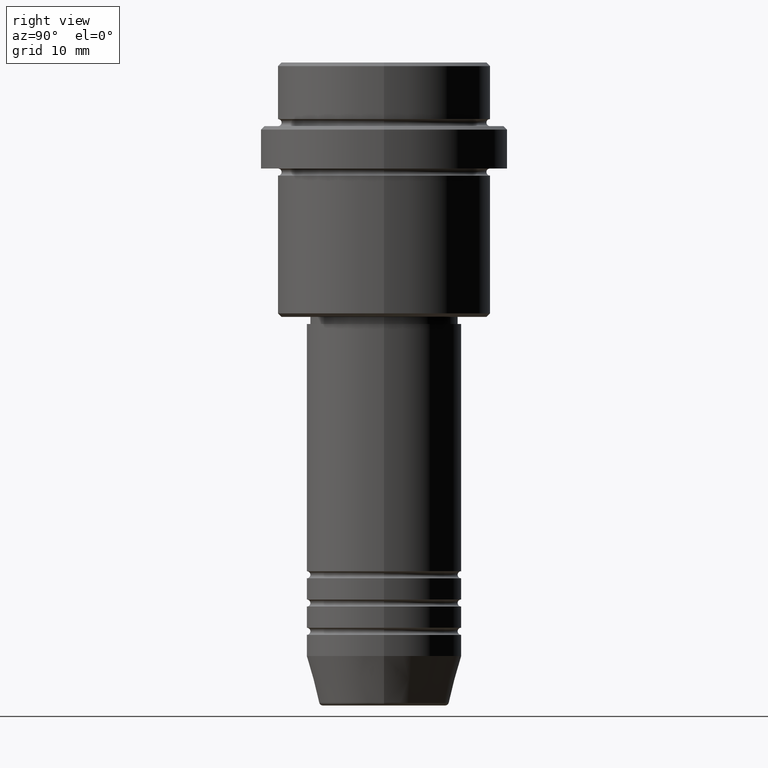
[diagram: clean part render]
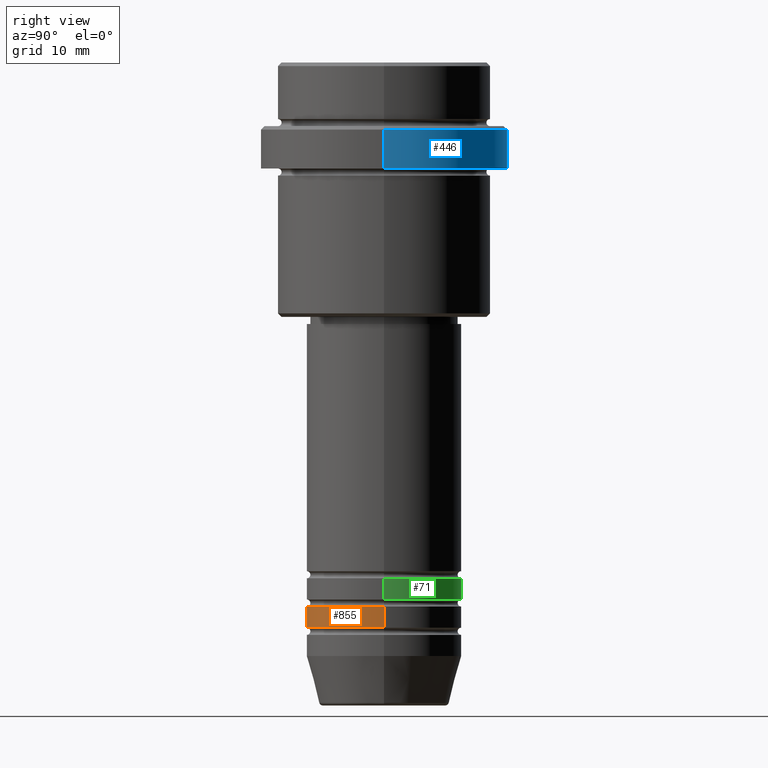
[diagram: same view with three faces highlighted in distinct colors, each labeled with its STEP entity id]
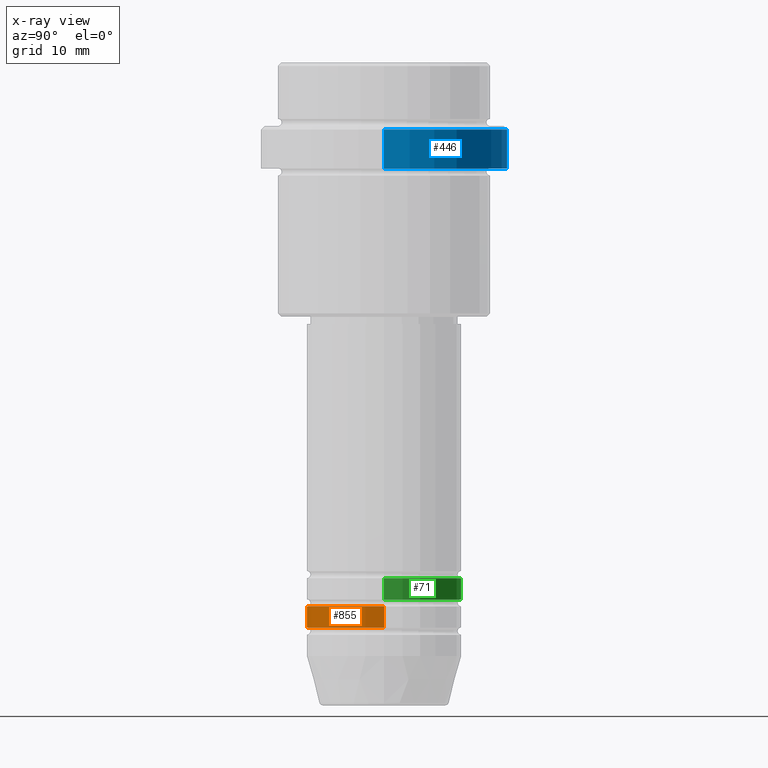
[diagram: x-ray of the same camera — body ghosted, the three highlighted faces saturated]
A machine part, right view with three faces highlighted in distinct colors.
The next image is the same camera in x-ray (body ghosted, the three faces saturated) — at least one of them is partly hidden behind the body in this view.
Their STEP definitions:

[orange] entity #855 — the highlighted cylindrical surface (partial cylindrical patch) has radius 11 mm, axis along (-0, -0, 1).
#1 = LINE ( 'NONE', #225, #716 ) ;
#13 = DIRECTION ( 'NONE',  ( 1.000000000000000000, 0.000000000000000000, 0.000000000000000000 ) ) ;
#108 = VERTEX_POINT ( 'NONE', #1408 ) ;
#112 = CARTESIAN_POINT ( 'NONE',  ( 0.000000000000000000, 0.000000000000000000, 0.000000000000000000 ) ) ;
#188 = ORIENTED_EDGE ( 'NONE', *, *, #345, .T. ) ;
#197 = CYLINDRICAL_SURFACE ( 'NONE', #272, 11.00000000000000000 ) ;
#217 = FACE_OUTER_BOUND ( 'NONE', #698, .T. ) ;
#220 = EDGE_CURVE ( 'NONE', #583, #108, #570, .T. ) ;
#223 = CARTESIAN_POINT ( 'NONE',  ( 0.000000000000000000, 0.000000000000000000, -76.99999999999987210 ) ) ;
#225 = CARTESIAN_POINT ( 'NONE',  ( 11.00000000000000000, 0.000000000000000000, 0.000000000000000000 ) ) ;
#272 = AXIS2_PLACEMENT_3D ( 'NONE', #112, #1193, #670 ) ;
#318 = CARTESIAN_POINT ( 'NONE',  ( -11.00000000000000000, 1.347111479062088405E-15, 0.000000000000000000 ) ) ;
#345 = EDGE_CURVE ( 'NONE', #108, #1111, #1, .T. ) ;
#404 = VECTOR ( 'NONE', #1202, 1000.000000000000000 ) ;
#437 = EDGE_CURVE ( 'NONE', #583, #696, #781, .T. ) ;
#468 = ORIENTED_EDGE ( 'NONE', *, *, #437, .F. ) ;
#525 = CARTESIAN_POINT ( 'NONE',  ( 0.000000000000000000, 0.000000000000000000, -79.99999999999985789 ) ) ;
#570 = CIRCLE ( 'NONE', #667, 11.00000000000000000 ) ;
#583 = VERTEX_POINT ( 'NONE', #712 ) ;
#667 = AXIS2_PLACEMENT_3D ( 'NONE', #525, #914, #1326 ) ;
#670 = DIRECTION ( 'NONE',  ( 1.000000000000000000, 0.000000000000000000, 0.000000000000000000 ) ) ;
#696 = VERTEX_POINT ( 'NONE', #1397 ) ;
#698 = EDGE_LOOP ( 'NONE', ( #468, #851, #188, #946 ) ) ;
#712 = CARTESIAN_POINT ( 'NONE',  ( -11.00000000000000000, 1.347111479062088405E-15, -79.99999999999985789 ) ) ;
#716 = VECTOR ( 'NONE', #1116, 1000.000000000000000 ) ;
#781 = LINE ( 'NONE', #318, #404 ) ;
#818 = AXIS2_PLACEMENT_3D ( 'NONE', #223, #1178, #13 ) ;
#843 = EDGE_CURVE ( 'NONE', #696, #1111, #1184, .T. ) ;
#851 = ORIENTED_EDGE ( 'NONE', *, *, #220, .T. ) ;
#855 = ADVANCED_FACE ( 'NONE', ( #217 ), #197, .T. ) ;
#914 = DIRECTION ( 'NONE',  ( -0.000000000000000000, -0.000000000000000000, 1.000000000000000000 ) ) ;
#946 = ORIENTED_EDGE ( 'NONE', *, *, #843, .F. ) ;
#949 = CARTESIAN_POINT ( 'NONE',  ( 11.00000000000000000, 0.000000000000000000, -76.99999999999987210 ) ) ;
#1111 = VERTEX_POINT ( 'NONE', #949 ) ;
#1116 = DIRECTION ( 'NONE',  ( -0.000000000000000000, -0.000000000000000000, 1.000000000000000000 ) ) ;
#1178 = DIRECTION ( 'NONE',  ( -0.000000000000000000, -0.000000000000000000, 1.000000000000000000 ) ) ;
#1184 = CIRCLE ( 'NONE', #818, 11.00000000000000000 ) ;
#1193 = DIRECTION ( 'NONE',  ( -0.000000000000000000, -0.000000000000000000, 1.000000000000000000 ) ) ;
#1202 = DIRECTION ( 'NONE',  ( -0.000000000000000000, -0.000000000000000000, 1.000000000000000000 ) ) ;
#1326 = DIRECTION ( 'NONE',  ( 1.000000000000000000, 0.000000000000000000, 0.000000000000000000 ) ) ;
#1397 = CARTESIAN_POINT ( 'NONE',  ( -11.00000000000000000, 1.347111479062088405E-15, -76.99999999999987210 ) ) ;
#1408 = CARTESIAN_POINT ( 'NONE',  ( 11.00000000000000000, 0.000000000000000000, -79.99999999999985789 ) ) ;

[blue] entity #446 — the highlighted cylindrical surface (partial cylindrical patch) has radius 17.5 mm, axis along (-0, -0, 1).
#45 = AXIS2_PLACEMENT_3D ( 'NONE', #397, #1377, #389 ) ;
#121 = LINE ( 'NONE', #248, #793 ) ;
#226 = EDGE_LOOP ( 'NONE', ( #1280, #1406, #462, #1340 ) ) ;
#248 = CARTESIAN_POINT ( 'NONE',  ( 17.50000000000000000, 0.000000000000000000, 0.000000000000000000 ) ) ;
#262 = CARTESIAN_POINT ( 'NONE',  ( -17.50000000000000000, 2.143131898507868248E-15, -14.99999999999999822 ) ) ;
#270 = VERTEX_POINT ( 'NONE', #1244 ) ;
#327 = DIRECTION ( 'NONE',  ( -0.000000000000000000, -0.000000000000000000, 1.000000000000000000 ) ) ;
#338 = AXIS2_PLACEMENT_3D ( 'NONE', #421, #327, #768 ) ;
#376 = DIRECTION ( 'NONE',  ( -0.000000000000000000, -0.000000000000000000, 1.000000000000000000 ) ) ;
#389 = DIRECTION ( 'NONE',  ( 1.000000000000000000, 0.000000000000000000, 0.000000000000000000 ) ) ;
#397 = CARTESIAN_POINT ( 'NONE',  ( 0.000000000000000000, 0.000000000000000000, -14.99999999999999822 ) ) ;
#421 = CARTESIAN_POINT ( 'NONE',  ( 0.000000000000000000, 0.000000000000000000, 0.000000000000000000 ) ) ;
#446 = ADVANCED_FACE ( 'NONE', ( #1411 ), #1108, .T. ) ;
#462 = ORIENTED_EDGE ( 'NONE', *, *, #785, .T. ) ;
#481 = LINE ( 'NONE', #937, #906 ) ;
#621 = EDGE_CURVE ( 'NONE', #1383, #270, #481, .T. ) ;
#654 = VERTEX_POINT ( 'NONE', #943 ) ;
#764 = CIRCLE ( 'NONE', #45, 17.50000000000000000 ) ;
#768 = DIRECTION ( 'NONE',  ( 1.000000000000000000, 0.000000000000000000, 0.000000000000000000 ) ) ;
#773 = CARTESIAN_POINT ( 'NONE',  ( 17.50000000000000000, 0.000000000000000000, -9.500000000000012434 ) ) ;
#785 = EDGE_CURVE ( 'NONE', #270, #894, #1042, .T. ) ;
#793 = VECTOR ( 'NONE', #827, 1000.000000000000000 ) ;
#827 = DIRECTION ( 'NONE',  ( -0.000000000000000000, -0.000000000000000000, 1.000000000000000000 ) ) ;
#891 = CARTESIAN_POINT ( 'NONE',  ( 0.000000000000000000, 0.000000000000000000, -9.500000000000012434 ) ) ;
#894 = VERTEX_POINT ( 'NONE', #773 ) ;
#906 = VECTOR ( 'NONE', #376, 1000.000000000000000 ) ;
#937 = CARTESIAN_POINT ( 'NONE',  ( -17.50000000000000000, 2.143131898507868248E-15, 0.000000000000000000 ) ) ;
#943 = CARTESIAN_POINT ( 'NONE',  ( 17.50000000000000000, 0.000000000000000000, -14.99999999999999822 ) ) ;
#987 = DIRECTION ( 'NONE',  ( 0.000000000000000000, 0.000000000000000000, -1.000000000000000000 ) ) ;
#1003 = EDGE_CURVE ( 'NONE', #654, #894, #121, .T. ) ;
#1042 = CIRCLE ( 'NONE', #1078, 17.50000000000000000 ) ;
#1078 = AXIS2_PLACEMENT_3D ( 'NONE', #891, #987, #1416 ) ;
#1108 = CYLINDRICAL_SURFACE ( 'NONE', #338, 17.50000000000000000 ) ;
#1172 = EDGE_CURVE ( 'NONE', #654, #1383, #764, .T. ) ;
#1244 = CARTESIAN_POINT ( 'NONE',  ( -17.50000000000000000, 2.143131898507868248E-15, -9.500000000000012434 ) ) ;
#1280 = ORIENTED_EDGE ( 'NONE', *, *, #1172, .T. ) ;
#1340 = ORIENTED_EDGE ( 'NONE', *, *, #1003, .F. ) ;
#1377 = DIRECTION ( 'NONE',  ( -0.000000000000000000, -0.000000000000000000, 1.000000000000000000 ) ) ;
#1383 = VERTEX_POINT ( 'NONE', #262 ) ;
#1406 = ORIENTED_EDGE ( 'NONE', *, *, #621, .T. ) ;
#1411 = FACE_OUTER_BOUND ( 'NONE', #226, .T. ) ;
#1416 = DIRECTION ( 'NONE',  ( 1.000000000000000000, 0.000000000000000000, 0.000000000000000000 ) ) ;

[green] entity #71 — the highlighted cylindrical surface (partial cylindrical patch) has radius 11 mm, axis along (-0, -0, 1).
#21 = AXIS2_PLACEMENT_3D ( 'NONE', #114, #812, #144 ) ;
#38 = DIRECTION ( 'NONE',  ( 1.000000000000000000, 0.000000000000000000, 0.000000000000000000 ) ) ;
#71 = ADVANCED_FACE ( 'NONE', ( #1286 ), #1027, .T. ) ;
#114 = CARTESIAN_POINT ( 'NONE',  ( 0.000000000000000000, 0.000000000000000000, 0.000000000000000000 ) ) ;
#144 = DIRECTION ( 'NONE',  ( 1.000000000000000000, 0.000000000000000000, 0.000000000000000000 ) ) ;
#285 = DIRECTION ( 'NONE',  ( -0.000000000000000000, -0.000000000000000000, 1.000000000000000000 ) ) ;
#312 = CARTESIAN_POINT ( 'NONE',  ( -11.00000000000000000, 1.347111479062088405E-15, -72.99999999999987210 ) ) ;
#320 = VECTOR ( 'NONE', #285, 1000.000000000000000 ) ;
#369 = AXIS2_PLACEMENT_3D ( 'NONE', #569, #1225, #38 ) ;
#382 = ORIENTED_EDGE ( 'NONE', *, *, #1056, .T. ) ;
#454 = ORIENTED_EDGE ( 'NONE', *, *, #1237, .T. ) ;
#457 = ORIENTED_EDGE ( 'NONE', *, *, #965, .F. ) ;
#500 = LINE ( 'NONE', #853, #1126 ) ;
#569 = CARTESIAN_POINT ( 'NONE',  ( 0.000000000000000000, 0.000000000000000000, -72.99999999999987210 ) ) ;
#634 = CARTESIAN_POINT ( 'NONE',  ( 11.00000000000000000, 0.000000000000000000, -75.99999999999987210 ) ) ;
#638 = CARTESIAN_POINT ( 'NONE',  ( 0.000000000000000000, 0.000000000000000000, -75.99999999999987210 ) ) ;
#707 = VERTEX_POINT ( 'NONE', #1371 ) ;
#749 = DIRECTION ( 'NONE',  ( -0.000000000000000000, -0.000000000000000000, 1.000000000000000000 ) ) ;
#751 = VERTEX_POINT ( 'NONE', #634 ) ;
#812 = DIRECTION ( 'NONE',  ( -0.000000000000000000, -0.000000000000000000, 1.000000000000000000 ) ) ;
#853 = CARTESIAN_POINT ( 'NONE',  ( 11.00000000000000000, 0.000000000000000000, 0.000000000000000000 ) ) ;
#965 = EDGE_CURVE ( 'NONE', #707, #1238, #1185, .T. ) ;
#978 = DIRECTION ( 'NONE',  ( 1.000000000000000000, 0.000000000000000000, 0.000000000000000000 ) ) ;
#1027 = CYLINDRICAL_SURFACE ( 'NONE', #21, 11.00000000000000000 ) ;
#1056 = EDGE_CURVE ( 'NONE', #1090, #1238, #1125, .T. ) ;
#1082 = DIRECTION ( 'NONE',  ( -0.000000000000000000, -0.000000000000000000, 1.000000000000000000 ) ) ;
#1090 = VERTEX_POINT ( 'NONE', #1370 ) ;
#1121 = ORIENTED_EDGE ( 'NONE', *, *, #1177, .F. ) ;
#1125 = LINE ( 'NONE', #1150, #320 ) ;
#1126 = VECTOR ( 'NONE', #1082, 1000.000000000000000 ) ;
#1146 = CIRCLE ( 'NONE', #1328, 11.00000000000000000 ) ;
#1150 = CARTESIAN_POINT ( 'NONE',  ( -11.00000000000000000, 1.347111479062088405E-15, 0.000000000000000000 ) ) ;
#1177 = EDGE_CURVE ( 'NONE', #751, #707, #500, .T. ) ;
#1185 = CIRCLE ( 'NONE', #369, 11.00000000000000000 ) ;
#1225 = DIRECTION ( 'NONE',  ( -0.000000000000000000, -0.000000000000000000, 1.000000000000000000 ) ) ;
#1229 = EDGE_LOOP ( 'NONE', ( #454, #382, #457, #1121 ) ) ;
#1237 = EDGE_CURVE ( 'NONE', #751, #1090, #1146, .T. ) ;
#1238 = VERTEX_POINT ( 'NONE', #312 ) ;
#1286 = FACE_OUTER_BOUND ( 'NONE', #1229, .T. ) ;
#1328 = AXIS2_PLACEMENT_3D ( 'NONE', #638, #749, #978 ) ;
#1370 = CARTESIAN_POINT ( 'NONE',  ( -11.00000000000000000, 1.347111479062088405E-15, -75.99999999999987210 ) ) ;
#1371 = CARTESIAN_POINT ( 'NONE',  ( 11.00000000000000000, 0.000000000000000000, -72.99999999999987210 ) ) ;